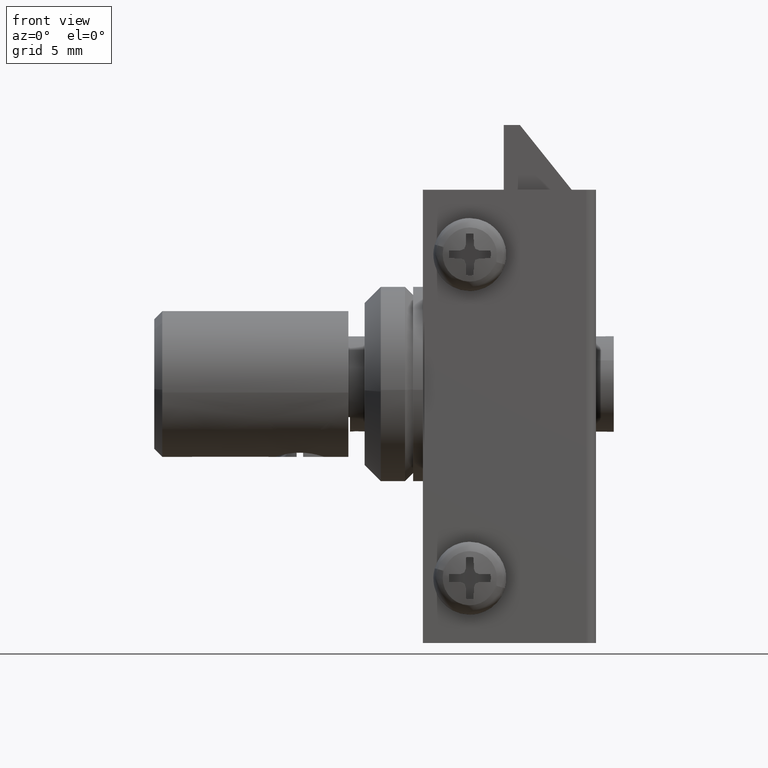
[diagram: clean part render]
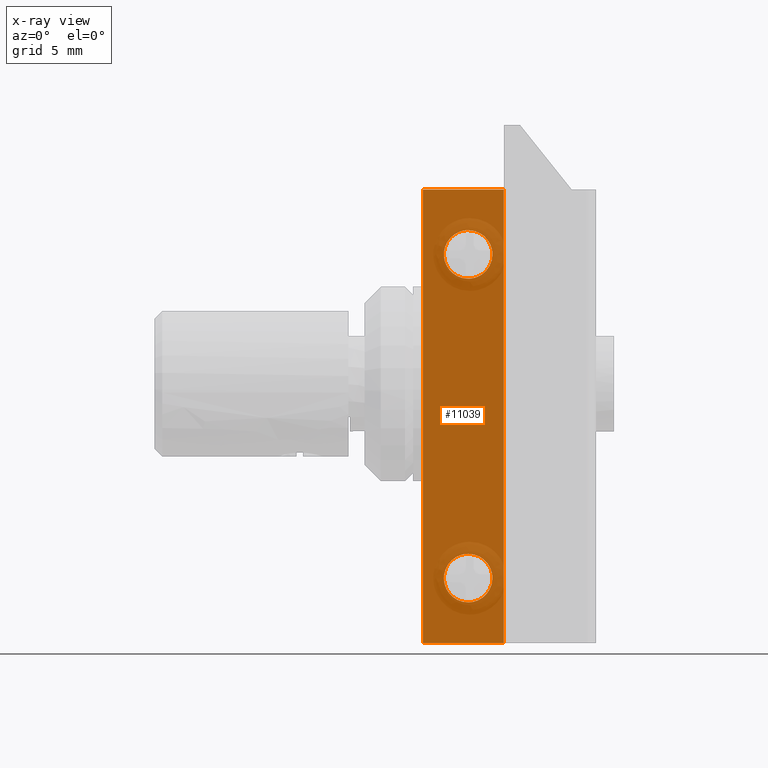
[diagram: x-ray — body ghosted, one internal face saturated and labeled with its STEP entity id]
A machine part, front view, then the same camera in x-ray: the body is ghosted and one INTERNAL B-rep face — a face not visible from any outside direction — is saturated and labeled: STEP entity #11039.
In plain terms, the highlighted face is a freeform B-spline surface patch.
Its self-contained STEP definition (entity closure, byte-faithful):
#10493=CARTESIAN_POINT('',(-7.193663851996578,5.0,22.628004285649780));
#10494=VERTEX_POINT('',#10493);
#10500=CARTESIAN_POINT('',(-7.799986999999869,5.0,22.500000000000000));
#10501=VERTEX_POINT('',#10500);
#10502=CARTESIAN_POINT('',(-7.193663851996578,5.0,22.628004285649777));
#10503=CARTESIAN_POINT('',(-7.483313574097517,5.000000000000001,22.500000000000007));
#10504=CARTESIAN_POINT('',(-7.799986999999869,5.0,22.500000000000000));
#10512=(BOUNDED_CURVE()B_SPLINE_CURVE(2,(#10502,#10503,#10504),.UNSPECIFIED.,.F.,.U.)B_SPLINE_CURVE_WITH_KNOTS((3,3),(0.931361578455044,1.0),.UNSPECIFIED.)CURVE()GEOMETRIC_REPRESENTATION_ITEM()RATIONAL_B_SPLINE_CURVE((0.883326595746720,0.919585087117693,1.0))REPRESENTATION_ITEM(''));
#10513=EDGE_CURVE('',#10494,#10501,#10512,.T.);
#10515=CARTESIAN_POINT('',(-7.799986999999869,5.0,25.500000000000000));
#10516=VERTEX_POINT('',#10515);
#10517=CARTESIAN_POINT('',(-7.799986999999869,5.0,22.500000000000000));
#10518=CARTESIAN_POINT('',(-9.299986999999868,5.000000000000001,22.500000000000000));
#10519=CARTESIAN_POINT('',(-9.299986999999868,5.0,24.0));
#10520=CARTESIAN_POINT('',(-9.299986999999868,5.000000000000001,25.500000000000007));
#10521=CARTESIAN_POINT('',(-7.799986999999869,5.0,25.500000000000000));
#10529=(BOUNDED_CURVE()B_SPLINE_CURVE(2,(#10517,#10518,#10519,#10520,#10521),.UNSPECIFIED.,.F.,.U.)B_SPLINE_CURVE_WITH_KNOTS((3,2,3),(0.0,0.250000000000000,0.500000000000000),.UNSPECIFIED.)CURVE()GEOMETRIC_REPRESENTATION_ITEM()RATIONAL_B_SPLINE_CURVE((1.0,0.707106781186548,1.0,0.707106781186548,1.0))REPRESENTATION_ITEM(''));
#10530=EDGE_CURVE('',#10501,#10516,#10529,.T.);
#10532=CARTESIAN_POINT('',(-6.300044115405084,5.0,23.986910196583921));
#10533=VERTEX_POINT('',#10532);
#10534=CARTESIAN_POINT('',(-7.799986999999869,5.0,25.500000000000000));
#10535=CARTESIAN_POINT('',(-6.299986999999871,5.000000000000001,25.500000000000007));
#10536=CARTESIAN_POINT('',(-6.299986999999870,5.0,24.0));
#10537=CARTESIAN_POINT('',(-6.299986999999870,5.0,23.993454973600425));
#10538=CARTESIAN_POINT('',(-6.300044115405084,5.000000000000001,23.986910196583921));
#10546=(BOUNDED_CURVE()B_SPLINE_CURVE(2,(#10534,#10535,#10536,#10537,#10538),.UNSPECIFIED.,.F.,.U.)B_SPLINE_CURVE_WITH_KNOTS((3,2,3),(0.500000000000000,0.750000000000000,0.751539894374566),.UNSPECIFIED.)CURVE()GEOMETRIC_REPRESENTATION_ITEM()RATIONAL_B_SPLINE_CURVE((1.0,0.707106781186548,1.0,0.998195901520002,0.996414028008809))REPRESENTATION_ITEM(''));
#10547=EDGE_CURVE('',#10516,#10533,#10546,.T.);
#10637=CARTESIAN_POINT('',(-6.300044115405084,5.0,23.986910196583914));
#10638=CARTESIAN_POINT('',(-6.308489302855000,5.0,23.019187591528276));
#10639=CARTESIAN_POINT('',(-7.193663851996578,5.000000000000001,22.628004285649773));
#10647=(BOUNDED_CURVE()B_SPLINE_CURVE(2,(#10637,#10638,#10639),.UNSPECIFIED.,.F.,.U.)B_SPLINE_CURVE_WITH_KNOTS((3,3),(0.751539894374567,0.931361578455044),.UNSPECIFIED.)CURVE()GEOMETRIC_REPRESENTATION_ITEM()RATIONAL_B_SPLINE_CURVE((0.996414028008807,0.788335148773023,0.883326595746719))REPRESENTATION_ITEM(''));
#10648=EDGE_CURVE('',#10533,#10494,#10647,.T.);
#10689=CARTESIAN_POINT('',(-9.288386320728849,5.0,4.186192003194426));
#10690=VERTEX_POINT('',#10689);
#10696=CARTESIAN_POINT('',(-7.799986999999869,5.0,5.500000000000116));
#10697=VERTEX_POINT('',#10696);
#10698=CARTESIAN_POINT('',(-9.288386320728849,5.0,4.186192003194426));
#10699=CARTESIAN_POINT('',(-9.124034900091509,4.999999999999999,5.500000000000116));
#10700=CARTESIAN_POINT('',(-7.799986999999869,5.0,5.500000000000116));
#10708=(BOUNDED_CURVE()B_SPLINE_CURVE(2,(#10698,#10699,#10700),.UNSPECIFIED.,.F.,.U.)B_SPLINE_CURVE_WITH_KNOTS((3,3),(0.271473928987599,0.500000000000000),.UNSPECIFIED.)CURVE()GEOMETRIC_REPRESENTATION_ITEM()RATIONAL_B_SPLINE_CURVE((0.954005430241926,0.732265053913545,1.0))REPRESENTATION_ITEM(''));
#10709=EDGE_CURVE('',#10690,#10697,#10708,.T.);
#10711=CARTESIAN_POINT('',(-6.300044115405084,5.0,3.986910196584034));
#10712=VERTEX_POINT('',#10711);
#10713=CARTESIAN_POINT('',(-7.799986999999869,5.0,5.500000000000116));
#10714=CARTESIAN_POINT('',(-6.299986999999871,5.000000000000001,5.500000000000115));
#10715=CARTESIAN_POINT('',(-6.299986999999870,5.0,4.000000000000116));
#10716=CARTESIAN_POINT('',(-6.299986999999870,5.0,3.993454973600536));
#10717=CARTESIAN_POINT('',(-6.300044115405084,5.000000000000001,3.986910196584034));
#10725=(BOUNDED_CURVE()B_SPLINE_CURVE(2,(#10713,#10714,#10715,#10716,#10717),.UNSPECIFIED.,.F.,.U.)B_SPLINE_CURVE_WITH_KNOTS((3,2,3),(0.500000000000000,0.750000000000000,0.751539894374566),.UNSPECIFIED.)CURVE()GEOMETRIC_REPRESENTATION_ITEM()RATIONAL_B_SPLINE_CURVE((1.0,0.707106781186548,1.0,0.998195901520002,0.996414028008809))REPRESENTATION_ITEM(''));
#10726=EDGE_CURVE('',#10697,#10712,#10725,.T.);
#10810=CARTESIAN_POINT('',(-7.799986999999869,5.0,2.500000000000116));
#10811=VERTEX_POINT('',#10810);
#10812=CARTESIAN_POINT('',(-6.300044115405084,5.0,3.986910196584035));
#10813=CARTESIAN_POINT('',(-6.313020184441541,5.0,2.500000000000116));
#10814=CARTESIAN_POINT('',(-7.799986999999869,5.0,2.500000000000116));
#10822=(BOUNDED_CURVE()B_SPLINE_CURVE(2,(#10812,#10813,#10814),.UNSPECIFIED.,.F.,.U.)B_SPLINE_CURVE_WITH_KNOTS((3,3),(0.751539894374567,1.0),.UNSPECIFIED.)CURVE()GEOMETRIC_REPRESENTATION_ITEM()RATIONAL_B_SPLINE_CURVE((0.996414028008807,0.708910879666546,1.0))REPRESENTATION_ITEM(''));
#10823=EDGE_CURVE('',#10712,#10811,#10822,.T.);
#10825=CARTESIAN_POINT('',(-7.799986999999869,5.0,2.500000000000116));
#10826=CARTESIAN_POINT('',(-9.299986999999868,5.000000000000001,2.500000000000116));
#10827=CARTESIAN_POINT('',(-9.299986999999868,5.0,4.000000000000116));
#10828=CARTESIAN_POINT('',(-9.299986999999868,4.999999999999999,4.093457391375797));
#10829=CARTESIAN_POINT('',(-9.288386320728849,5.0,4.186192003194425));
#10837=(BOUNDED_CURVE()B_SPLINE_CURVE(2,(#10825,#10826,#10827,#10828,#10829),.UNSPECIFIED.,.F.,.U.)B_SPLINE_CURVE_WITH_KNOTS((3,2,3),(0.0,0.250000000000000,0.271473928987599),.UNSPECIFIED.)CURVE()GEOMETRIC_REPRESENTATION_ITEM()RATIONAL_B_SPLINE_CURVE((1.0,0.707106781186548,1.0,0.974841727273002,0.954005430241926))REPRESENTATION_ITEM(''));
#10838=EDGE_CURVE('',#10811,#10690,#10837,.T.);
#10851=CARTESIAN_POINT('',(-10.600006000000119,5.0,28.0));
#10852=VERTEX_POINT('',#10851);
#10865=CARTESIAN_POINT('',(-5.600006000000001,5.0,28.0));
#10866=VERTEX_POINT('',#10865);
#10872=CARTESIAN_POINT('',(-10.600006000000119,5.0,28.0));
#10873=CARTESIAN_POINT('',(-5.600006000000001,5.0,28.0));
#10874=QUASI_UNIFORM_CURVE('',1,(#10872,#10873),.UNSPECIFIED.,.F.,.U.);
#10875=EDGE_CURVE('',#10852,#10866,#10874,.T.);
#10887=CARTESIAN_POINT('',(-10.600006000000119,5.0,0.0));
#10888=VERTEX_POINT('',#10887);
#10894=CARTESIAN_POINT('',(-5.600006000000001,5.0,0.0));
#10895=VERTEX_POINT('',#10894);
#10896=CARTESIAN_POINT('',(-10.600006000000119,5.0,0.0));
#10897=CARTESIAN_POINT('',(-5.600006000000001,5.0,0.0));
#10898=QUASI_UNIFORM_CURVE('',1,(#10896,#10897),.UNSPECIFIED.,.F.,.U.);
#10899=EDGE_CURVE('',#10888,#10895,#10898,.T.);
#10928=CARTESIAN_POINT('',(-5.600006000000001,5.0,0.0));
#10929=CARTESIAN_POINT('',(-5.600006000000001,5.0,28.0));
#10930=QUASI_UNIFORM_CURVE('',1,(#10928,#10929),.UNSPECIFIED.,.F.,.U.);
#10931=EDGE_CURVE('',#10895,#10866,#10930,.T.);
#10960=CARTESIAN_POINT('',(-10.600006000000119,5.0,0.0));
#10961=CARTESIAN_POINT('',(-10.600006000000119,5.0,28.0));
#10962=QUASI_UNIFORM_CURVE('',1,(#10960,#10961),.UNSPECIFIED.,.F.,.U.);
#10963=EDGE_CURVE('',#10888,#10852,#10962,.T.);
#11016=CARTESIAN_POINT('',(-10.849756113254911,5.0,29.398599945730570));
#11017=CARTESIAN_POINT('',(-10.849756113254911,5.0,-1.398600696749092));
#11018=CARTESIAN_POINT('',(-5.350256244373078,5.0,29.398599945730570));
#11019=CARTESIAN_POINT('',(-5.350256244373078,5.0,-1.398600696749092));
#11020=B_SPLINE_SURFACE_WITH_KNOTS('',1,1,((#11016,#11018),(#11017,#11019)),.UNSPECIFIED.,.F.,.F.,.U.,(2,2),(2,2),(0.0,30.797200642479670),(0.0,5.499499868881834),.UNSPECIFIED.);
#11021=ORIENTED_EDGE('',*,*,#10875,.T.);
#11022=ORIENTED_EDGE('',*,*,#10931,.F.);
#11023=ORIENTED_EDGE('',*,*,#10899,.F.);
#11024=ORIENTED_EDGE('',*,*,#10963,.T.);
#11025=EDGE_LOOP('',(#11021,#11022,#11023,#11024));
#11026=FACE_OUTER_BOUND('',#11025,.T.);
#11027=ORIENTED_EDGE('',*,*,#10530,.F.);
#11028=ORIENTED_EDGE('',*,*,#10513,.F.);
#11029=ORIENTED_EDGE('',*,*,#10648,.F.);
#11030=ORIENTED_EDGE('',*,*,#10547,.F.);
#11031=EDGE_LOOP('',(#11027,#11028,#11029,#11030));
#11032=FACE_BOUND('',#11031,.T.);
#11033=ORIENTED_EDGE('',*,*,#10726,.F.);
#11034=ORIENTED_EDGE('',*,*,#10709,.F.);
#11035=ORIENTED_EDGE('',*,*,#10838,.F.);
#11036=ORIENTED_EDGE('',*,*,#10823,.F.);
#11037=EDGE_LOOP('',(#11033,#11034,#11035,#11036));
#11038=FACE_BOUND('',#11037,.T.);
#11039=ADVANCED_FACE('',(#11026,#11032,#11038),#11020,.F.);